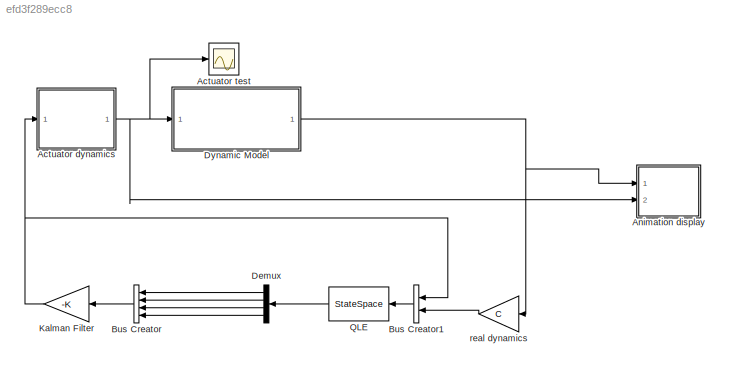
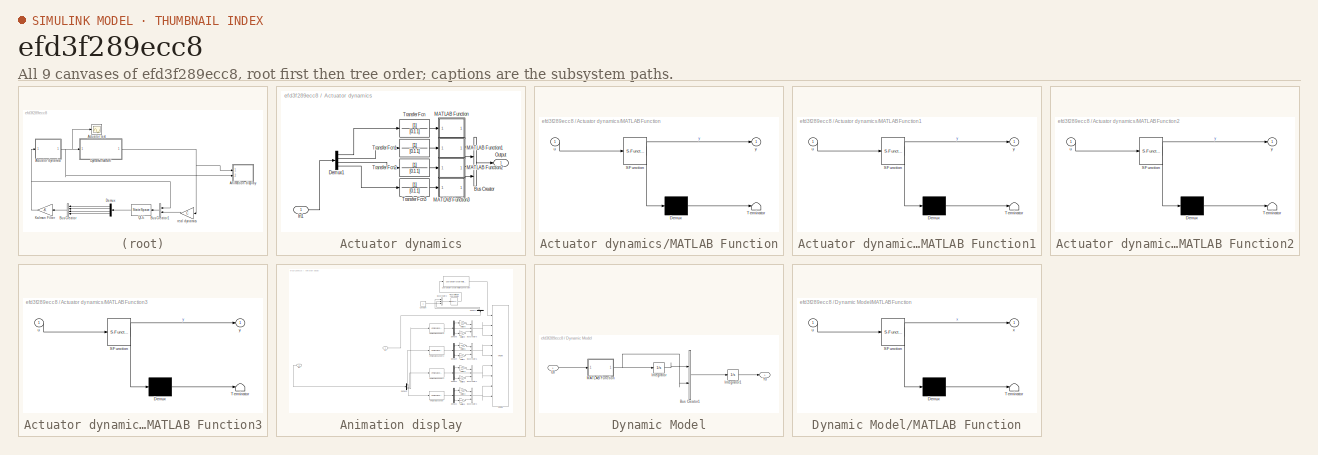
[diagram: thumbnail index - all 9 canvases of the model, root first then tree order]
MODEL slx_efd3f289ecc8
KIND model
CONFIG AbsTol = auto
CONFIG EnableMultiTasking = off
CONFIG FixedStep = auto
CONFIG MaxStep = auto
CONFIG MinStep = auto
CONFIG RelTol = 1e-3
CONFIG SampleTimeConstraint = Unconstrained
CONFIG Solver = VariableStepAuto
CONFIG SolverName = VariableStepAuto
CONFIG StartTime = 0.0
CONFIG StopTime = 50
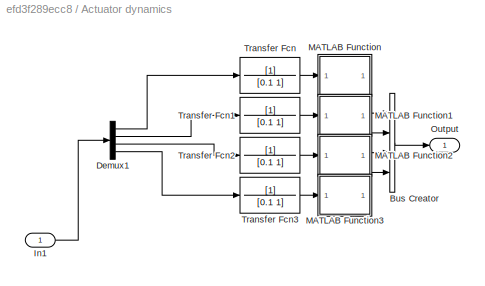
BLOCK [SubSystem] Actuator dynamics
  Ports = [1, 1]
  RequestExecContextInheritance = off
BLOCK [BusCreator] Actuator dynamics/Bus Creator
  DisplayOption = bar
  InheritFromInputs = on
  Inputs = 4
  Ports = [4, 1]
BLOCK [Demux] Actuator dynamics/Demux1
  DisplayOption = bar
  Ports = [1, 4]
BLOCK [Inport] Actuator dynamics/In1
  IconDisplay = Port number
BLOCK [SubSystem] Actuator dynamics/MATLAB Function
  ErrorFcn = Stateflow.Translate.translate
  PermitHierarchicalResolution = ExplicitOnly
  Ports = [1, 1]
  RequestExecContextInheritance = off
  SFBlockType = MATLAB Function
  TreatAsAtomicUnit = on
BLOCK [Demux] Actuator dynamics/MATLAB Function/ Demux 
  Outputs = 1
  Ports = [1, 1]
BLOCK [S-Function] Actuator dynamics/MATLAB Function/ SFunction 
  EnableBusSupport = on
  FunctionName = sf_sfun
  PortCounts = [1 2]
  Ports = [1, 2]
  SFcnIsStateOwnerBlock = off
  SFunctionDeploymentMode = off
  Tag = Stateflow S-Function 1
BLOCK [Terminator] Actuator dynamics/MATLAB Function/ Terminator 
BLOCK [Inport] Actuator dynamics/MATLAB Function/u
  IconDisplay = Port number
BLOCK [Outport] Actuator dynamics/MATLAB Function/y
  IconDisplay = Port number
BLOCK [SubSystem] Actuator dynamics/MATLAB Function1
  ErrorFcn = Stateflow.Translate.translate
  PermitHierarchicalResolution = ExplicitOnly
  Ports = [1, 1]
  RequestExecContextInheritance = off
  SFBlockType = MATLAB Function
  TreatAsAtomicUnit = on
BLOCK [Demux] Actuator dynamics/MATLAB Function1/ Demux 
  Outputs = 1
  Ports = [1, 1]
BLOCK [S-Function] Actuator dynamics/MATLAB Function1/ SFunction 
  EnableBusSupport = on
  FunctionName = sf_sfun
  PortCounts = [1 2]
  Ports = [1, 2]
  SFcnIsStateOwnerBlock = off
  SFunctionDeploymentMode = off
  Tag = Stateflow S-Function 3
BLOCK [Terminator] Actuator dynamics/MATLAB Function1/ Terminator 
BLOCK [Inport] Actuator dynamics/MATLAB Function1/u
  IconDisplay = Port number
BLOCK [Outport] Actuator dynamics/MATLAB Function1/y
  IconDisplay = Port number
BLOCK [SubSystem] Actuator dynamics/MATLAB Function2
  ErrorFcn = Stateflow.Translate.translate
  PermitHierarchicalResolution = ExplicitOnly
  Ports = [1, 1]
  RequestExecContextInheritance = off
  SFBlockType = MATLAB Function
  TreatAsAtomicUnit = on
BLOCK [Demux] Actuator dynamics/MATLAB Function2/ Demux 
  Outputs = 1
  Ports = [1, 1]
BLOCK [S-Function] Actuator dynamics/MATLAB Function2/ SFunction 
  EnableBusSupport = on
  FunctionName = sf_sfun
  PortCounts = [1 2]
  Ports = [1, 2]
  SFcnIsStateOwnerBlock = off
  SFunctionDeploymentMode = off
  Tag = Stateflow S-Function 4
BLOCK [Terminator] Actuator dynamics/MATLAB Function2/ Terminator 
BLOCK [Inport] Actuator dynamics/MATLAB Function2/u
  IconDisplay = Port number
BLOCK [Outport] Actuator dynamics/MATLAB Function2/y
  IconDisplay = Port number
BLOCK [SubSystem] Actuator dynamics/MATLAB Function3
  ErrorFcn = Stateflow.Translate.translate
  PermitHierarchicalResolution = ExplicitOnly
  Ports = [1, 1]
  RequestExecContextInheritance = off
  SFBlockType = MATLAB Function
  TreatAsAtomicUnit = on
BLOCK [Demux] Actuator dynamics/MATLAB Function3/ Demux 
  Outputs = 1
  Ports = [1, 1]
BLOCK [S-Function] Actuator dynamics/MATLAB Function3/ SFunction 
  EnableBusSupport = on
  FunctionName = sf_sfun
  PortCounts = [1 2]
  Ports = [1, 2]
  SFcnIsStateOwnerBlock = off
  SFunctionDeploymentMode = off
  Tag = Stateflow S-Function 5
BLOCK [Terminator] Actuator dynamics/MATLAB Function3/ Terminator 
BLOCK [Inport] Actuator dynamics/MATLAB Function3/u
  IconDisplay = Port number
BLOCK [Outport] Actuator dynamics/MATLAB Function3/y
  IconDisplay = Port number
BLOCK [Outport] Actuator dynamics/Output
  IconDisplay = Port number
BLOCK [TransferFcn] Actuator dynamics/Transfer Fcn
  Denominator = [0.1 1]
BLOCK [TransferFcn] Actuator dynamics/Transfer Fcn1
  Denominator = [0.1 1]
BLOCK [TransferFcn] Actuator dynamics/Transfer Fcn2
  Denominator = [0.1 1]
BLOCK [TransferFcn] Actuator dynamics/Transfer Fcn3
  Denominator = [0.1 1]
BLOCK [Scope] Actuator test
  Floating = off
  NumInputPorts = 1
  Ports = [1]
  ScopeSpecificationString = Simulink.scopes.TimeScopeBlockCfg('CurrentConfiguration', extmgr.ConfigurationSet(extmgr.Configuration('Core','General UI',true),extmgr.Configuration('Core','Source UI',true),extmgr.Configuration('Sources','WiredSimulink',true),extmgr.Configuration('Visuals','Time Domain',true,'SerializedDisplays',{struct('MinYLimReal','-0.20907','MaxYLimReal','2.23261','YLabelReal','','MinYLimMag','0.00000','MaxY...<+1467ch>
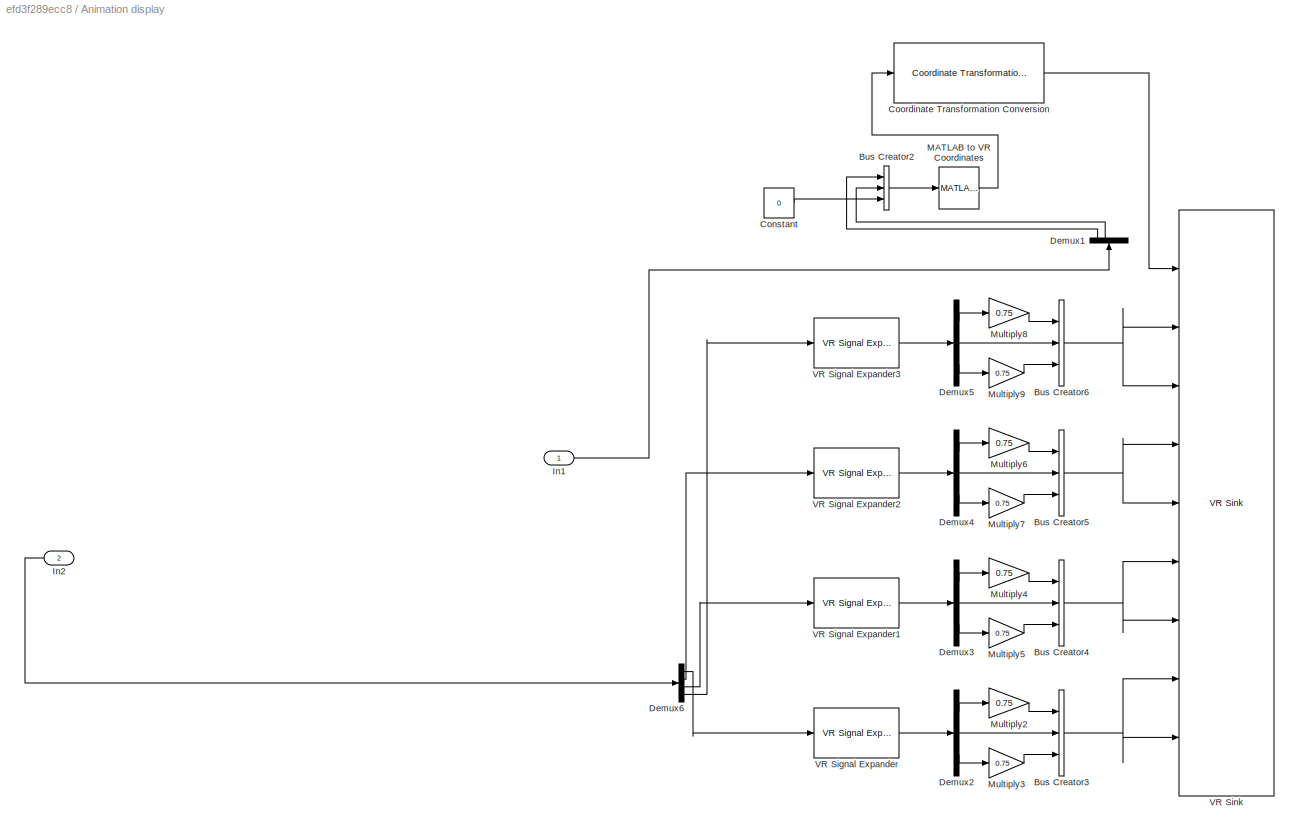
BLOCK [SubSystem] Animation display
  Ports = [2]
  RequestExecContextInheritance = off
BLOCK [BusCreator] Animation display/Bus Creator2
  DisplayOption = bar
  InheritFromInputs = on
  Inputs = 3
  Ports = [3, 1]
BLOCK [BusCreator] Animation display/Bus Creator3
  DisplayOption = bar
  InheritFromInputs = on
  Inputs = 3
  Ports = [3, 1]
BLOCK [BusCreator] Animation display/Bus Creator4
  DisplayOption = bar
  InheritFromInputs = on
  Inputs = 3
  Ports = [3, 1]
BLOCK [BusCreator] Animation display/Bus Creator5
  DisplayOption = bar
  InheritFromInputs = on
  Inputs = 3
  Ports = [3, 1]
BLOCK [BusCreator] Animation display/Bus Creator6
  DisplayOption = bar
  InheritFromInputs = on
  Inputs = 3
  Ports = [3, 1]
BLOCK [Constant] Animation display/Constant
  Value = 0
BLOCK [Reference] Animation display/Coordinate Transformation Conversion  REF=robotcorelib/Coordinate Transformation Conversion
  Ports = [1, 1]
  SourceBlock = robotcorelib/Coordinate Transformation Conversion
  SourceProductBaseCode = RO
  SourceProductName = Robotics System Toolbox
  SourceType = robotics.slcore.internal.block.CoordinateTransformationConversion
BLOCK [Demux] Animation display/Demux1
  DisplayOption = bar
  Ports = [1, 4]
BLOCK [Demux] Animation display/Demux2
  DisplayOption = bar
  Outputs = 3
  Ports = [1, 3]
BLOCK [Demux] Animation display/Demux3
  DisplayOption = bar
  Outputs = 3
  Ports = [1, 3]
BLOCK [Demux] Animation display/Demux4
  DisplayOption = bar
  Outputs = 3
  Ports = [1, 3]
BLOCK [Demux] Animation display/Demux5
  DisplayOption = bar
  Outputs = 3
  Ports = [1, 3]
BLOCK [Demux] Animation display/Demux6
  DisplayOption = bar
  Ports = [1, 4]
BLOCK [Inport] Animation display/In1
  IconDisplay = Port number
BLOCK [Inport] Animation display/In2
  IconDisplay = Port number
  Port = 2
BLOCK [Reference] Animation display/MATLAB to VR Coordinates  REF=vrlib/Utilities/MATLAB to
VR Coordinates
  Ports = [1, 1]
  SourceBlock = vrlib/Utilities/MATLAB to\nVR Coordinates
  SourceProductBaseCode = SL
  SourceProductName = Simulink
  SourceType = MATLAB to VR Coordinates
BLOCK [Gain] Animation display/Multiply2
  Gain = 0.75
  OutDataTypeStr = Inherit: Inherit via internal rule
  ParamDataTypeStr = Inherit: Inherit via internal rule
  SaturateOnIntegerOverflow = off
BLOCK [Gain] Animation display/Multiply3
  Gain = 0.75
  OutDataTypeStr = Inherit: Inherit via internal rule
  ParamDataTypeStr = Inherit: Inherit via internal rule
  SaturateOnIntegerOverflow = off
BLOCK [Gain] Animation display/Multiply4
  Gain = 0.75
  OutDataTypeStr = Inherit: Inherit via internal rule
  ParamDataTypeStr = Inherit: Inherit via internal rule
  SaturateOnIntegerOverflow = off
BLOCK [Gain] Animation display/Multiply5
  Gain = 0.75
  OutDataTypeStr = Inherit: Inherit via internal rule
  ParamDataTypeStr = Inherit: Inherit via internal rule
  SaturateOnIntegerOverflow = off
BLOCK [Gain] Animation display/Multiply6
  Gain = 0.75
  OutDataTypeStr = Inherit: Inherit via internal rule
  ParamDataTypeStr = Inherit: Inherit via internal rule
  SaturateOnIntegerOverflow = off
BLOCK [Gain] Animation display/Multiply7
  Gain = 0.75
  OutDataTypeStr = Inherit: Inherit via internal rule
  ParamDataTypeStr = Inherit: Inherit via internal rule
  SaturateOnIntegerOverflow = off
BLOCK [Gain] Animation display/Multiply8
  Gain = 0.75
  OutDataTypeStr = Inherit: Inherit via internal rule
  ParamDataTypeStr = Inherit: Inherit via internal rule
  SaturateOnIntegerOverflow = off
BLOCK [Gain] Animation display/Multiply9
  Gain = 0.75
  OutDataTypeStr = Inherit: Inherit via internal rule
  ParamDataTypeStr = Inherit: Inherit via internal rule
  SaturateOnIntegerOverflow = off
BLOCK [Reference] Animation display/VR Signal Expander  REF=vrlib/VR Signal Expander
  Ports = [1, 1]
  SourceBlock = vrlib/VR Signal Expander
  SourceProductBaseCode = SL
  SourceProductName = Simulink
  SourceType = VR Signal Expander
BLOCK [Reference] Animation display/VR Signal Expander1  REF=vrlib/VR Signal Expander
  Ports = [1, 1]
  SourceBlock = vrlib/VR Signal Expander
  SourceProductBaseCode = SL
  SourceProductName = Simulink
  SourceType = VR Signal Expander
BLOCK [Reference] Animation display/VR Signal Expander2  REF=vrlib/VR Signal Expander
  Ports = [1, 1]
  SourceBlock = vrlib/VR Signal Expander
  SourceProductBaseCode = SL
  SourceProductName = Simulink
  SourceType = VR Signal Expander
BLOCK [Reference] Animation display/VR Signal Expander3  REF=vrlib/VR Signal Expander
  Ports = [1, 1]
  SourceBlock = vrlib/VR Signal Expander
  SourceProductBaseCode = SL
  SourceProductName = Simulink
  SourceType = VR Signal Expander
BLOCK [Reference] Animation display/VR Sink  REF=vrlib/VR Sink
  InstantiateOnLoad = on
  Ports = [9, 1]
  SourceBlock = vrlib/VR Sink
  SourceProductBaseCode = SL
  SourceProductName = Simulink
  SourceType = Virtual Reality Sink
BLOCK [BusCreator] Bus Creator
  DisplayOption = bar
  InheritFromInputs = on
  Inputs = 4
  Ports = [4, 1]
BLOCK [BusCreator] Bus Creator1
  DisplayOption = bar
  InheritFromInputs = on
  Inputs = 2
  Ports = [2, 1]
BLOCK [Demux] Demux
  DisplayOption = bar
  Ports = [1, 4]
BLOCK [SubSystem] Dynamic Model
  Ports = [1, 1]
  RequestExecContextInheritance = off
BLOCK [BusCreator] Dynamic Model/Bus Creator1
  DisplayOption = bar
  InheritFromInputs = on
  Inputs = 2
  Ports = [2, 1]
BLOCK [Integrator] Dynamic Model/Integrator
  Ports = [1, 1]
BLOCK [Integrator] Dynamic Model/Integrator1
  Ports = [1, 1]
BLOCK [SubSystem] Dynamic Model/MATLAB Function
  ErrorFcn = Stateflow.Translate.translate
  PermitHierarchicalResolution = ExplicitOnly
  Ports = [1, 1]
  RequestExecContextInheritance = off
  SFBlockType = MATLAB Function
  TreatAsAtomicUnit = on
BLOCK [Demux] Dynamic Model/MATLAB Function/ Demux 
  Outputs = 1
  Ports = [1, 1]
BLOCK [S-Function] Dynamic Model/MATLAB Function/ SFunction 
  EnableBusSupport = on
  FunctionName = sf_sfun
  PortCounts = [1 2]
  Ports = [1, 2]
  SFcnIsStateOwnerBlock = off
  SFunctionDeploymentMode = off
  Tag = Stateflow S-Function 2
BLOCK [Terminator] Dynamic Model/MATLAB Function/ Terminator 
BLOCK [Inport] Dynamic Model/MATLAB Function/u
  IconDisplay = Port number
BLOCK [Outport] Dynamic Model/MATLAB Function/x
  IconDisplay = Port number
  VectorParamsAs1DForOutWhenUnconnected = off
BLOCK [Inport] Dynamic Model/U0
  IconDisplay = Port number
BLOCK [Outport] Dynamic Model/Y0
  IconDisplay = Port number
BLOCK [Gain] Kalman Filter
  Gain = -K
  Multiplication = Matrix(K*u) (u vector)
  OutDataTypeStr = Inherit: Inherit via internal rule
  ParamDataTypeStr = Inherit: Inherit via internal rule
  SaturateOnIntegerOverflow = off
BLOCK [StateSpace] QLE
  A = sysKF.a
  B = sysKF.b
  C = sysKF.c
  D = sysKF.d
  InitialCondition = [-5 0 0 0]
  Ports = [1, 1]
BLOCK [Gain] real dynamics
  Gain = C
  Multiplication = Matrix(K*u) (u vector)
  OutDataTypeStr = Inherit: Inherit via internal rule
  ParamDataTypeStr = Inherit: Inherit via internal rule
  SaturateOnIntegerOverflow = off
LINE Actuator dynamics/Bus Creator:1 -> Actuator dynamics/Output:1
LINE Actuator dynamics/Demux1:1 -> Actuator dynamics/Transfer Fcn:1
LINE Actuator dynamics/Demux1:2 -> Actuator dynamics/Transfer Fcn1:1
LINE Actuator dynamics/Demux1:3 -> Actuator dynamics/Transfer Fcn2:1
LINE Actuator dynamics/Demux1:4 -> Actuator dynamics/Transfer Fcn3:1
LINE Actuator dynamics/In1:1 -> Actuator dynamics/Demux1:1
LINE Actuator dynamics/MATLAB Function1:1 -> Actuator dynamics/Bus Creator:2
LINE Actuator dynamics/MATLAB Function2:1 -> Actuator dynamics/Bus Creator:3
LINE Actuator dynamics/MATLAB Function3:1 -> Actuator dynamics/Bus Creator:4
LINE Actuator dynamics/MATLAB Function:1 -> Actuator dynamics/Bus Creator:1
LINE Actuator dynamics/Transfer Fcn1:1 -> Actuator dynamics/MATLAB Function1:1
LINE Actuator dynamics/Transfer Fcn2:1 -> Actuator dynamics/MATLAB Function2:1
LINE Actuator dynamics/Transfer Fcn3:1 -> Actuator dynamics/MATLAB Function3:1
LINE Actuator dynamics/Transfer Fcn:1 -> Actuator dynamics/MATLAB Function:1
NET Actuator dynamics:1 -> Actuator test:1, Animation display:2, Dynamic Model:1
LINE Animation display/Bus Creator2:1 -> Animation display/MATLAB to VR Coordinates:1
NET Animation display/Bus Creator3:1 -> Animation display/VR Sink:8, Animation display/VR Sink:9
NET Animation display/Bus Creator4:1 -> Animation display/VR Sink:6, Animation display/VR Sink:7
NET Animation display/Bus Creator5:1 -> Animation display/VR Sink:4, Animation display/VR Sink:5
NET Animation display/Bus Creator6:1 -> Animation display/VR Sink:2, Animation display/VR Sink:3
LINE Animation display/Constant:1 -> Animation display/Bus Creator2:3
LINE Animation display/Coordinate Transformation Conversion:1 -> Animation display/VR Sink:1
LINE Animation display/Demux1:1 -> Animation display/Bus Creator2:1
LINE Animation display/Demux1:2 -> Animation display/Bus Creator2:2
LINE Animation display/Demux2:1 -> Animation display/Multiply2:1
LINE Animation display/Demux2:2 -> Animation display/Bus Creator3:2
LINE Animation display/Demux2:3 -> Animation display/Multiply3:1
LINE Animation display/Demux3:1 -> Animation display/Multiply4:1
LINE Animation display/Demux3:2 -> Animation display/Bus Creator4:2
LINE Animation display/Demux3:3 -> Animation display/Multiply5:1
LINE Animation display/Demux4:1 -> Animation display/Multiply6:1
LINE Animation display/Demux4:2 -> Animation display/Bus Creator5:2
LINE Animation display/Demux4:3 -> Animation display/Multiply7:1
LINE Animation display/Demux5:1 -> Animation display/Multiply8:1
LINE Animation display/Demux5:2 -> Animation display/Bus Creator6:2
LINE Animation display/Demux5:3 -> Animation display/Multiply9:1
LINE Animation display/Demux6:1 -> Animation display/VR Signal Expander:1
LINE Animation display/Demux6:2 -> Animation display/VR Signal Expander2:1
LINE Animation display/Demux6:3 -> Animation display/VR Signal Expander1:1
LINE Animation display/Demux6:4 -> Animation display/VR Signal Expander3:1
LINE Animation display/In1:1 -> Animation display/Demux1:1
LINE Animation display/In2:1 -> Animation display/Demux6:1
LINE Animation display/MATLAB to VR Coordinates:1 -> Animation display/Coordinate Transformation Conversion:1
LINE Animation display/Multiply2:1 -> Animation display/Bus Creator3:1
LINE Animation display/Multiply3:1 -> Animation display/Bus Creator3:3
LINE Animation display/Multiply4:1 -> Animation display/Bus Creator4:1
LINE Animation display/Multiply5:1 -> Animation display/Bus Creator4:3
LINE Animation display/Multiply6:1 -> Animation display/Bus Creator5:1
LINE Animation display/Multiply7:1 -> Animation display/Bus Creator5:3
LINE Animation display/Multiply8:1 -> Animation display/Bus Creator6:1
LINE Animation display/Multiply9:1 -> Animation display/Bus Creator6:3
LINE Animation display/VR Signal Expander1:1 -> Animation display/Demux3:1
LINE Animation display/VR Signal Expander2:1 -> Animation display/Demux4:1
LINE Animation display/VR Signal Expander3:1 -> Animation display/Demux5:1
LINE Animation display/VR Signal Expander:1 -> Animation display/Demux2:1
LINE Bus Creator1:1 -> QLE:1
LINE Bus Creator:1 -> Kalman Filter:1
LINE Demux:1 -> Bus Creator:1
LINE Demux:2 -> Bus Creator:2
LINE Demux:3 -> Bus Creator:3
LINE Demux:4 -> Bus Creator:4
LINE Dynamic Model/Bus Creator1:1 -> Dynamic Model/Integrator1:1
LINE Dynamic Model/Integrator1:1 -> Dynamic Model/Y0:1
LINE Dynamic Model/Integrator:1 -> Dynamic Model/Bus Creator1:1
NET Dynamic Model/MATLAB Function:1 -> Dynamic Model/Bus Creator1:2, Dynamic Model/Integrator:1
LINE Dynamic Model/U0:1 -> Dynamic Model/MATLAB Function:1
NET Dynamic Model:1 -> Animation display:1, real dynamics:1
NET Kalman Filter:1 -> Actuator dynamics:1, Bus Creator1:1
LINE QLE:1 -> Demux:1
LINE real dynamics:1 -> Bus Creator1:2
note: NET lines group one-source signal fan-out (src -> all destinations, sorted); 1:1 wires keep LINE
CHART Actuator dynamics/MATLAB Function states=1 transitions=1
  STATE_LABEL 'eML_blk_kernel()'
  STATE_LABEL 'SCRIPT:\nfunction y = fcn(u)\n\nif u < 0;\n    y = 0;\nelse if u > 2\n    y = 2;\n    else\n    y = u;\n        \nend\nend\n'
CHART Dynamic Model/MATLAB Function states=1 transitions=1
  STATE_LABEL 'eML_blk_kernel()'
  STATE_LABEL 'SCRIPT:\nfunction x = fcn(u)\n\nx = [0 0];\n    \n    \nd = 1;\nIx = 1.5;\nIy = Ix;\n\nF1 = u(1);\nF2 = u(2);\nF3 = u(3);\nF4 = u(4);\n\ntheta_2dot = d*(F2-F4)/Ix\nphi_2dot = d*(F1-F3)/Iy\n\n\n\nx(1) = theta_2dot;\nx(2) = phi_2dot;\n\n\n\nend'
CHART Actuator dynamics/MATLAB Function1 states=1 transitions=1
  STATE_LABEL 'eML_blk_kernel()'
  STATE_LABEL 'SCRIPT:\nfunction y = fcn(u)\n\nif u < 0;\n    y = 0;\nelse if u > 2\n    y = 2;\n    else\n    y = u;\n        \nend\nend\n'
CHART Actuator dynamics/MATLAB Function2 states=1 transitions=1
  STATE_LABEL 'eML_blk_kernel()'
  STATE_LABEL 'SCRIPT:\nfunction y = fcn(u)\n\nif u < 0;\n    y = 0;\nelse if u > 2\n    y = 2;\n    else\n    y = u;\n        \nend\nend\n\n'
CHART Actuator dynamics/MATLAB Function3 states=1 transitions=1
  STATE_LABEL 'eML_blk_kernel()'
  STATE_LABEL 'SCRIPT:\nfunction y = fcn(u)\n\nif u < 0;\n    y = 0;\nelse if u > 2\n    y = 2;\n    else\n    y = u;\n        \nend\nend\n'
